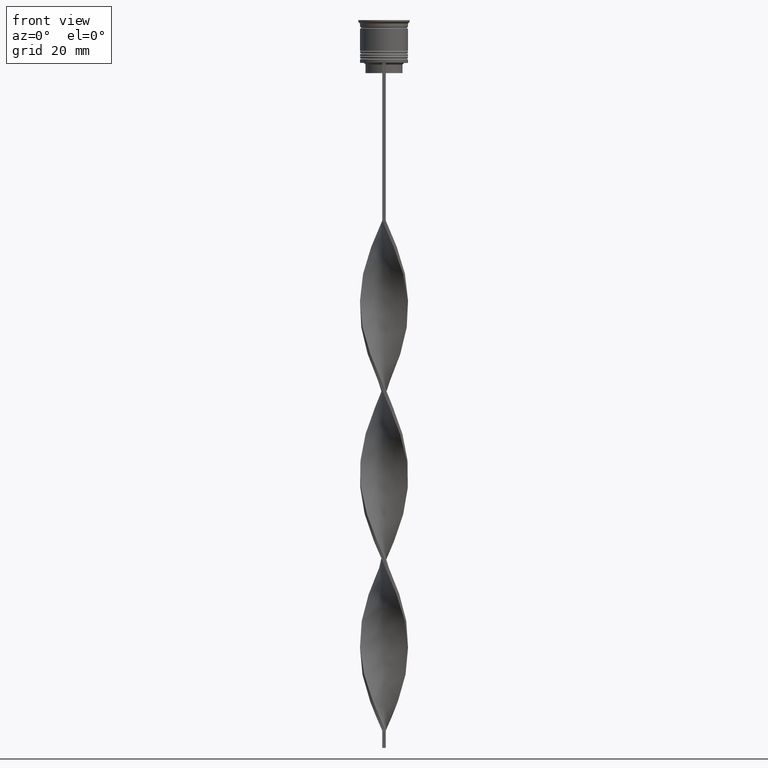
[diagram: clean part render]
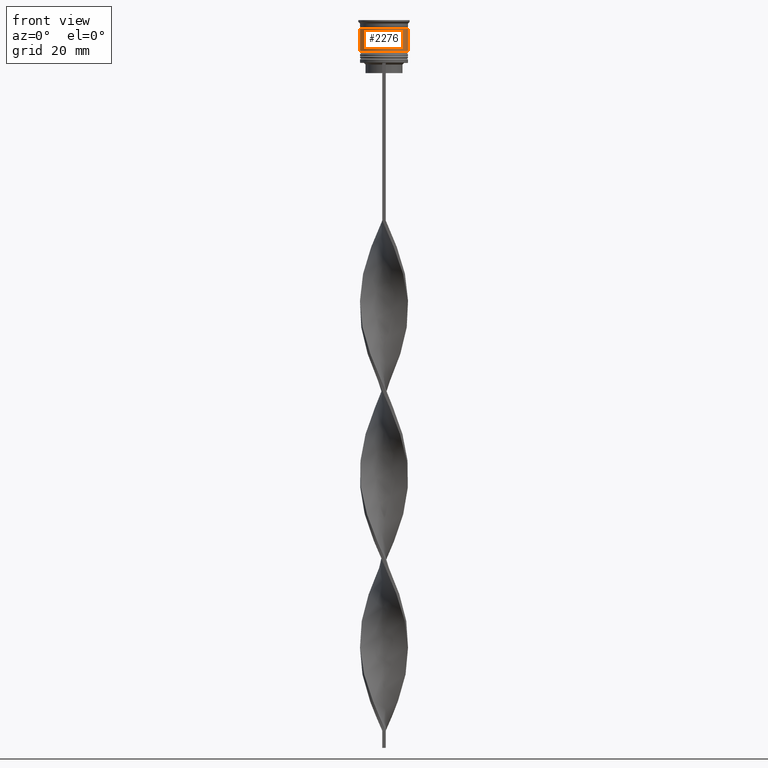
[diagram: same view with one face highlighted and labeled with its STEP entity id]
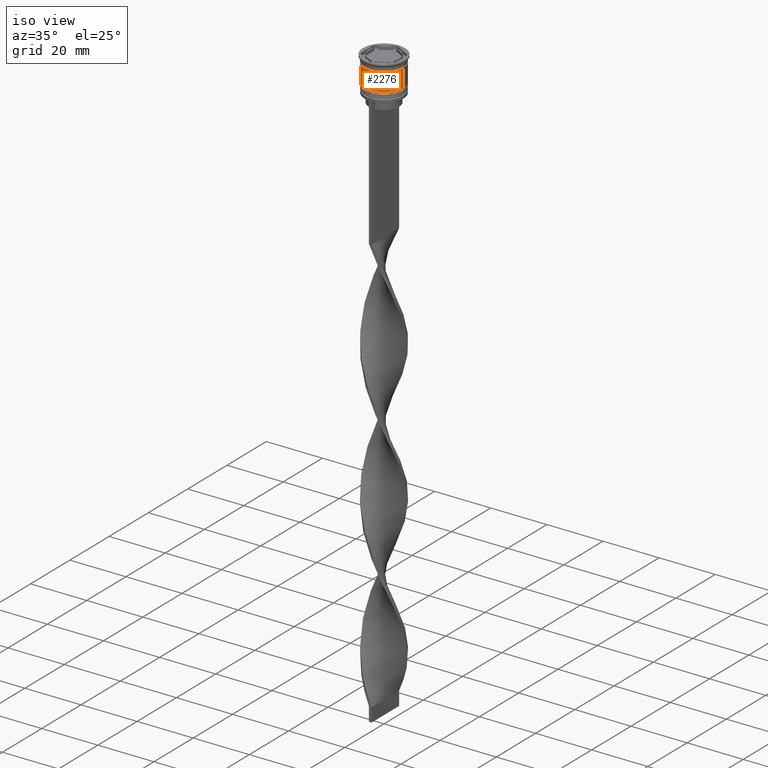
[diagram: same view with one face highlighted and labeled with its STEP entity id]
A machine part, front view. The second image highlights one B-rep face of the part: STEP entity #2276.
A second angle (iso view) of the same face is appended — the face is thin or edge-on in the first view.
In plain terms, the highlighted cylindrical surface (edge-blend (fillet) strip) has radius 7 mm, axis along (-0, -0, 1).
Its self-contained STEP definition (entity closure, byte-faithful):
#22 = ORIENTED_EDGE ( 'NONE', *, *, #3262, .T. ) ;
#25 = CIRCLE ( 'NONE', #3226, 7.000000000000000888 ) ;
#118 = CARTESIAN_POINT ( 'NONE',  ( 0.000000000000000000, 0.000000000000000000, -9.000000000000001776 ) ) ;
#200 = VECTOR ( 'NONE', #237, 1000.000000000000000 ) ;
#210 = VERTEX_POINT ( 'NONE', #3090 ) ;
#237 = DIRECTION ( 'NONE',  ( -0.000000000000000000, -0.000000000000000000, 1.000000000000000000 ) ) ;
#312 = AXIS2_PLACEMENT_3D ( 'NONE', #3199, #1462, #2676 ) ;
#503 = DIRECTION ( 'NONE',  ( 1.000000000000000000, 0.000000000000000000, 0.000000000000000000 ) ) ;
#542 = DIRECTION ( 'NONE',  ( -0.000000000000000000, -0.000000000000000000, 1.000000000000000000 ) ) ;
#560 = CARTESIAN_POINT ( 'NONE',  ( -6.999999999999999112, 8.572527594031472204E-16, 0.000000000000000000 ) ) ;
#577 = VECTOR ( 'NONE', #542, 1000.000000000000000 ) ;
#614 = ORIENTED_EDGE ( 'NONE', *, *, #3396, .F. ) ;
#680 = VERTEX_POINT ( 'NONE', #2348 ) ;
#700 = AXIS2_PLACEMENT_3D ( 'NONE', #2061, #1740, #503 ) ;
#883 = LINE ( 'NONE', #560, #577 ) ;
#1180 = CARTESIAN_POINT ( 'NONE',  ( 6.999999999999999112, 0.000000000000000000, 0.000000000000000000 ) ) ;
#1223 = CARTESIAN_POINT ( 'NONE',  ( 7.000000000000000888, 0.000000000000000000, -9.000000000000001776 ) ) ;
#1299 = ORIENTED_EDGE ( 'NONE', *, *, #2152, .F. ) ;
#1408 = LINE ( 'NONE', #1180, #200 ) ;
#1462 = DIRECTION ( 'NONE',  ( -0.000000000000000000, -0.000000000000000000, 1.000000000000000000 ) ) ;
#1740 = DIRECTION ( 'NONE',  ( -0.000000000000000000, -0.000000000000000000, 1.000000000000000000 ) ) ;
#1929 = EDGE_CURVE ( 'NONE', #210, #2516, #25, .T. ) ;
#2029 = FACE_OUTER_BOUND ( 'NONE', #2423, .T. ) ;
#2061 = CARTESIAN_POINT ( 'NONE',  ( 0.000000000000000000, 0.000000000000000000, 0.000000000000000000 ) ) ;
#2152 = EDGE_CURVE ( 'NONE', #2443, #680, #3205, .T. ) ;
#2195 = DIRECTION ( 'NONE',  ( -0.000000000000000000, -0.000000000000000000, 1.000000000000000000 ) ) ;
#2276 = ADVANCED_FACE ( 'NONE', ( #2029 ), #3240, .T. ) ;
#2348 = CARTESIAN_POINT ( 'NONE',  ( 6.999999999999997335, 0.000000000000000000, -2.500000000000000444 ) ) ;
#2423 = EDGE_LOOP ( 'NONE', ( #614, #2859, #22, #1299 ) ) ;
#2443 = VERTEX_POINT ( 'NONE', #2740 ) ;
#2516 = VERTEX_POINT ( 'NONE', #1223 ) ;
#2676 = DIRECTION ( 'NONE',  ( 1.000000000000000000, 0.000000000000000000, 0.000000000000000000 ) ) ;
#2740 = CARTESIAN_POINT ( 'NONE',  ( -6.999999999999997335, 8.572527594031471218E-16, -2.500000000000000444 ) ) ;
#2859 = ORIENTED_EDGE ( 'NONE', *, *, #1929, .T. ) ;
#3090 = CARTESIAN_POINT ( 'NONE',  ( -7.000000000000000888, 8.572527594031474176E-16, -9.000000000000001776 ) ) ;
#3199 = CARTESIAN_POINT ( 'NONE',  ( 0.000000000000000000, 0.000000000000000000, -2.500000000000000444 ) ) ;
#3205 = CIRCLE ( 'NONE', #312, 6.999999999999997335 ) ;
#3226 = AXIS2_PLACEMENT_3D ( 'NONE', #118, #2195, #3446 ) ;
#3240 = CYLINDRICAL_SURFACE ( 'NONE', #700, 6.999999999999999112 ) ;
#3262 = EDGE_CURVE ( 'NONE', #2516, #680, #1408, .T. ) ;
#3396 = EDGE_CURVE ( 'NONE', #210, #2443, #883, .T. ) ;
#3446 = DIRECTION ( 'NONE',  ( 1.000000000000000000, 0.000000000000000000, 0.000000000000000000 ) ) ;